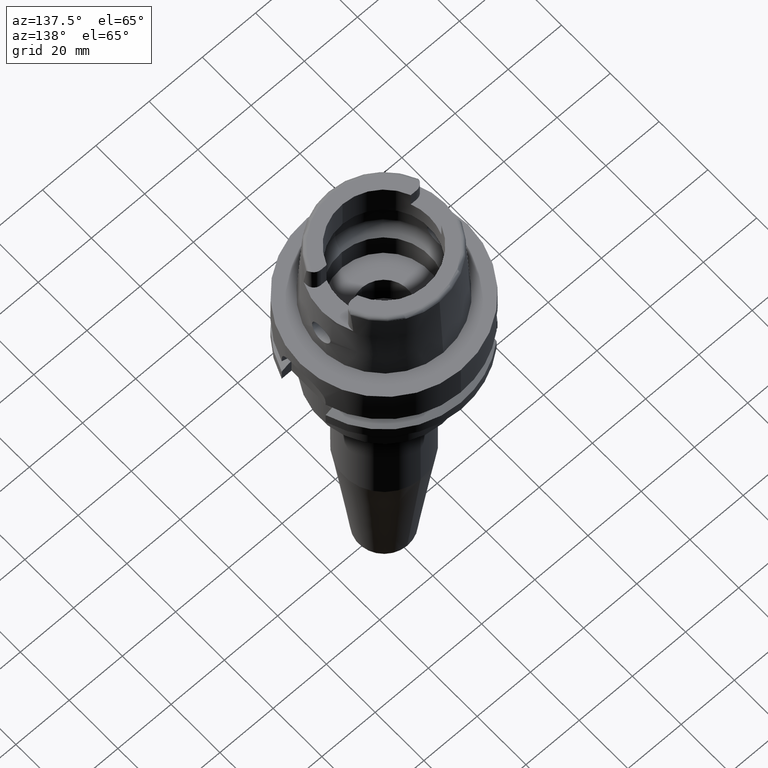
[diagram: clean part render]
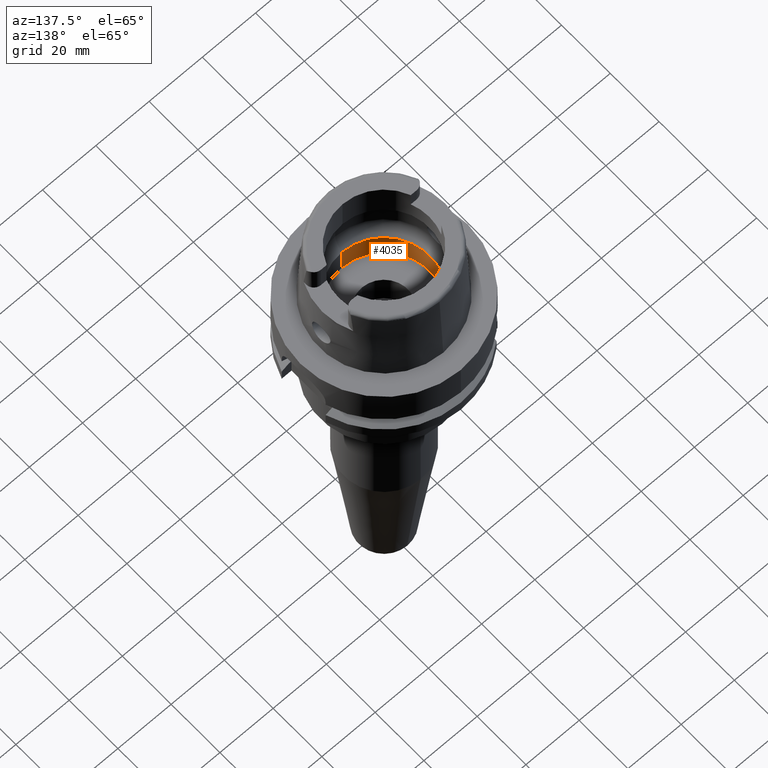
[diagram: same view with one face highlighted and labeled with its STEP entity id]
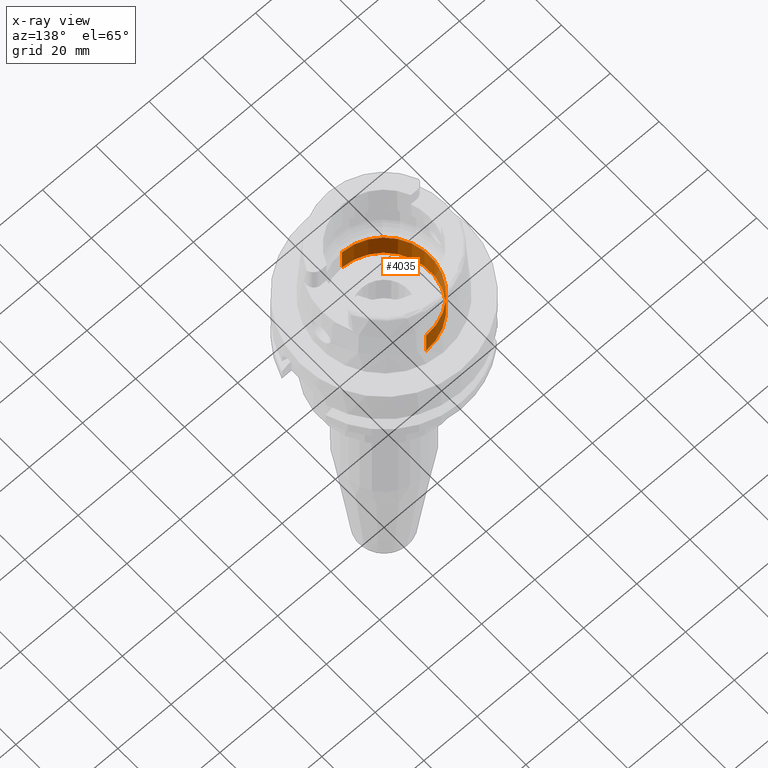
[diagram: x-ray of the same camera — body ghosted, the highlighted face saturated]
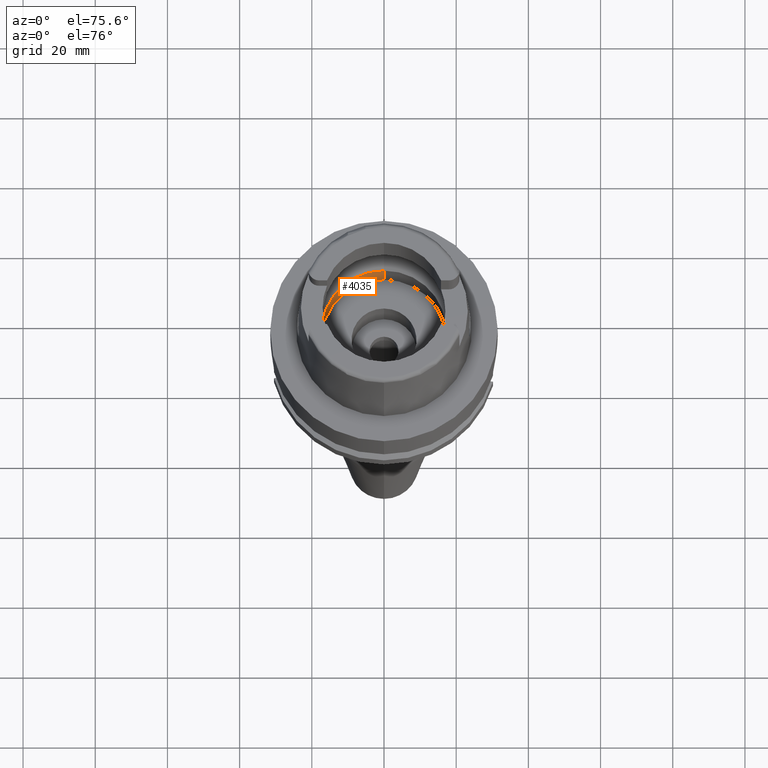
[diagram: same view with one face highlighted and labeled with its STEP entity id]
A machine part, auxiliary view. The second image highlights one B-rep face of the part: STEP entity #4035.
The next image is the same camera in x-ray: the body ghosted, the highlighted face saturated — about 12% of this face is hidden behind the body in this view.
A second angle (auxiliary view) of the same face is appended — the face is thin or edge-on in the first view.
In plain terms, the highlighted cylindrical surface (partial cylindrical patch) has radius 17.25 mm, axis along (0, 0, 1).
Its self-contained STEP definition (entity closure, byte-faithful):
#1957=CARTESIAN_POINT('',(0.E0,0.E0,-9.95E0));
#1958=DIRECTION('',(0.E0,0.E0,-1.E0));
#1959=DIRECTION('',(0.E0,-1.E0,0.E0));
#1960=AXIS2_PLACEMENT_3D('',#1957,#1958,#1959);
#1989=DIRECTION('',(0.E0,0.E0,1.E0));
#1990=VECTOR('',#1989,9.95E0);
#1991=CARTESIAN_POINT('',(0.E0,-1.725E1,-9.95E0));
#1992=LINE('',#1991,#1990);
#1996=CARTESIAN_POINT('',(0.E0,0.E0,3.410605131648E-13));
#1997=DIRECTION('',(0.E0,0.E0,-1.E0));
#1998=DIRECTION('',(0.E0,-1.E0,0.E0));
#1999=AXIS2_PLACEMENT_3D('',#1996,#1997,#1998);
#2004=DIRECTION('',(0.E0,0.E0,1.E0));
#2005=VECTOR('',#2004,9.95E0);
#2006=CARTESIAN_POINT('',(0.E0,1.725E1,-9.95E0));
#2007=LINE('',#2006,#2005);
#2396=CARTESIAN_POINT('',(0.E0,1.725E1,3.410605131648E-13));
#2397=VERTEX_POINT('',#2396);
#2398=CARTESIAN_POINT('',(0.E0,-1.725E1,3.410605131648E-13));
#2399=VERTEX_POINT('',#2398);
#2400=CARTESIAN_POINT('',(0.E0,1.725E1,-9.95E0));
#2401=VERTEX_POINT('',#2400);
#2402=CARTESIAN_POINT('',(0.E0,-1.725E1,-9.95E0));
#2403=VERTEX_POINT('',#2402);
#4021=CARTESIAN_POINT('',(0.E0,0.E0,-1.591E2));
#4022=DIRECTION('',(0.E0,0.E0,1.E0));
#4023=DIRECTION('',(0.E0,1.E0,0.E0));
#4024=AXIS2_PLACEMENT_3D('',#4021,#4022,#4023);
#4025=CYLINDRICAL_SURFACE('',#4024,1.725E1);
#4027=ORIENTED_EDGE('',*,*,#4026,.F.);
#4028=ORIENTED_EDGE('',*,*,#4010,.F.);
#4030=ORIENTED_EDGE('',*,*,#4029,.T.);
#4032=ORIENTED_EDGE('',*,*,#4031,.T.);
#4033=EDGE_LOOP('',(#4027,#4028,#4030,#4032));
#4034=FACE_OUTER_BOUND('',#4033,.F.);
#1961=CIRCLE('',#1960,1.725E1);
#2000=CIRCLE('',#1999,1.725E1);
#4010=EDGE_CURVE('',#2403,#2401,#1961,.T.);
#4026=EDGE_CURVE('',#2401,#2397,#2007,.T.);
#4029=EDGE_CURVE('',#2403,#2399,#1992,.T.);
#4031=EDGE_CURVE('',#2399,#2397,#2000,.T.);
#4035=ADVANCED_FACE('',(#4034),#4025,.F.);